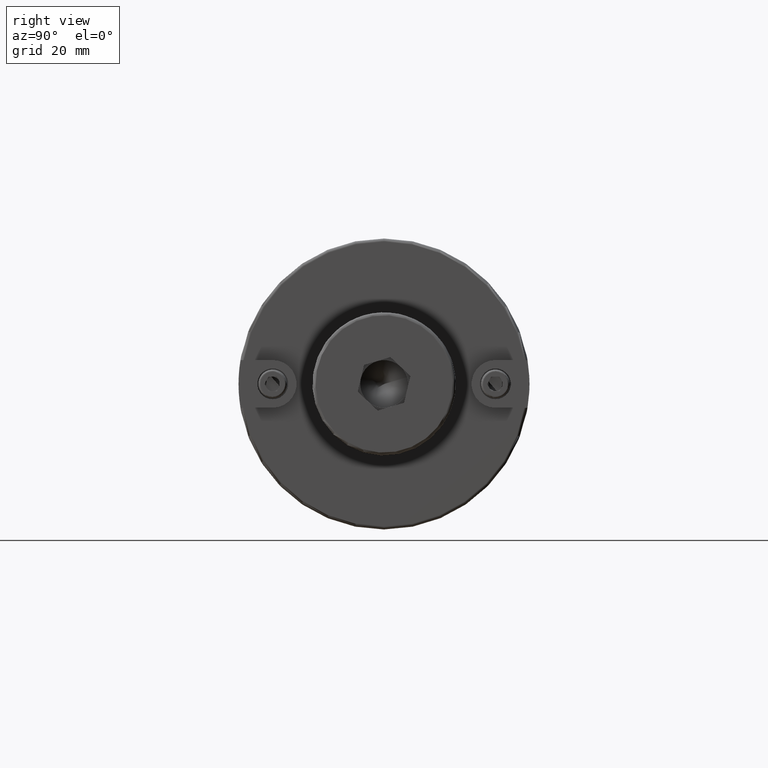
[diagram: clean part render]
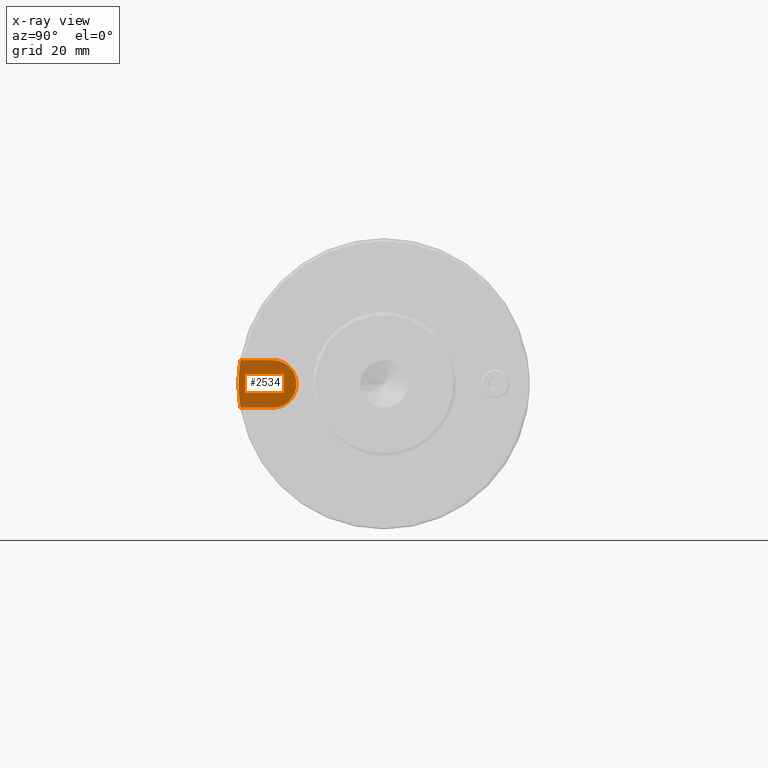
[diagram: x-ray — body ghosted, one internal face saturated and labeled with its STEP entity id]
A machine part, right view, then the same camera in x-ray: the body is ghosted and one INTERNAL B-rep face — a face not visible from any outside direction — is saturated and labeled: STEP entity #2534.
In plain terms, the highlighted planar face has unit normal (1, 0, 0).
Its self-contained STEP definition (entity closure, byte-faithful):
#178=FACE_BOUND('',#501,.T.);
#202=CIRCLE('',#2790,48.425);
#203=CIRCLE('',#2791,7.935);
#204=CIRCLE('',#2792,48.425);
#205=CIRCLE('',#2793,2.4892);
#348=FACE_OUTER_BOUND('',#500,.T.);
#500=EDGE_LOOP('',(#1692,#1693,#1694,#1695,#1696));
#501=EDGE_LOOP('',(#1697));
#677=LINE('',#3947,#840);
#679=LINE('',#3955,#842);
#840=VECTOR('',#3120,10.);
#842=VECTOR('',#3128,10.);
#1044=VERTEX_POINT('',#3944);
#1045=VERTEX_POINT('',#3946);
#1046=VERTEX_POINT('',#3950);
#1047=VERTEX_POINT('',#3952);
#1048=VERTEX_POINT('',#3954);
#1049=VERTEX_POINT('',#3957);
#1301=EDGE_CURVE('',#1044,#1045,#677,.T.);
#1303=EDGE_CURVE('',#1045,#1046,#202,.T.);
#1304=EDGE_CURVE('',#1047,#1044,#203,.T.);
#1305=EDGE_CURVE('',#1048,#1047,#679,.T.);
#1306=EDGE_CURVE('',#1046,#1048,#204,.T.);
#1307=EDGE_CURVE('',#1049,#1049,#205,.T.);
#1692=ORIENTED_EDGE('',*,*,#1303,.F.);
#1693=ORIENTED_EDGE('',*,*,#1301,.F.);
#1694=ORIENTED_EDGE('',*,*,#1304,.F.);
#1695=ORIENTED_EDGE('',*,*,#1305,.F.);
#1696=ORIENTED_EDGE('',*,*,#1306,.F.);
#1697=ORIENTED_EDGE('',*,*,#1307,.F.);
#2466=PLANE('',#2789);
#2534=ADVANCED_FACE('',(#348,#178),#2466,.T.);
#2789=AXIS2_PLACEMENT_3D('',#3949,#3122,#3123);
#2790=AXIS2_PLACEMENT_3D('',#3951,#3124,#3125);
#2791=AXIS2_PLACEMENT_3D('',#3953,#3126,#3127);
#2792=AXIS2_PLACEMENT_3D('',#3956,#3129,#3130);
#2793=AXIS2_PLACEMENT_3D('',#3958,#3131,#3132);
#3120=DIRECTION('',(0.,-1.,1.90305989088286E-16));
#3122=DIRECTION('center_axis',(1.,0.,0.));
#3123=DIRECTION('ref_axis',(0.,1.22464679914735E-16,1.));
#3124=DIRECTION('center_axis',(-1.,0.,0.));
#3125=DIRECTION('ref_axis',(0.,1.,0.));
#3126=DIRECTION('center_axis',(-1.,0.,0.));
#3127=DIRECTION('ref_axis',(0.,-1.22464679914735E-16,-1.));
#3128=DIRECTION('',(0.,1.,-5.46233707411847E-17));
#3129=DIRECTION('center_axis',(-1.,0.,0.));
#3130=DIRECTION('ref_axis',(0.,1.,0.));
#3131=DIRECTION('center_axis',(1.,0.,0.));
#3132=DIRECTION('ref_axis',(0.,1.22464679914735E-16,1.));
#3944=CARTESIAN_POINT('',(68.25,-37.06,-7.935));
#3946=CARTESIAN_POINT('',(68.25,-47.770455304508,-7.935));
#3947=CARTESIAN_POINT('',(68.25,-53.425,-7.93499999999999));
#3949=CARTESIAN_POINT('Origin',(68.25,-41.275,5.0547296634807E-15));
#3950=CARTESIAN_POINT('',(68.25,-48.425,-5.93035212487106E-15));
#3951=CARTESIAN_POINT('Origin',(68.25,0.,0.));
#3952=CARTESIAN_POINT('',(68.25,-37.06,7.93500000000001));
#3953=CARTESIAN_POINT('Origin',(68.25,-37.06,4.53854103764009E-15));
#3954=CARTESIAN_POINT('',(68.25,-47.770455304508,7.93500000000001));
#3955=CARTESIAN_POINT('',(68.25,-37.06,7.93500000000001));
#3956=CARTESIAN_POINT('Origin',(68.25,0.,0.));
#3957=CARTESIAN_POINT('',(68.25,-37.06,-2.4892));
#3958=CARTESIAN_POINT('Origin',(68.25,-37.06,4.53854103764009E-15));